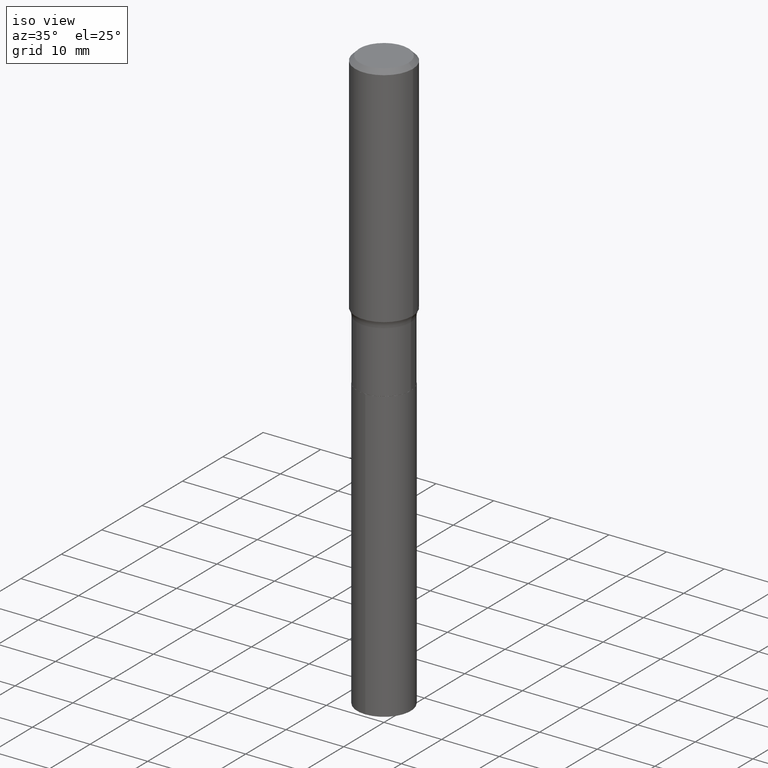
[diagram: clean part render]
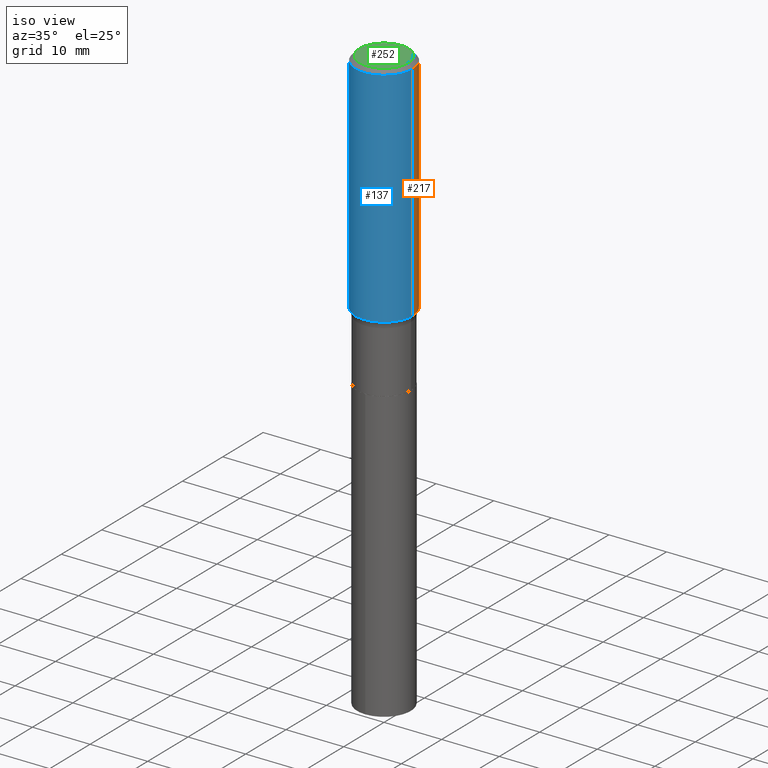
[diagram: same view with three faces highlighted in distinct colors, each labeled with its STEP entity id]
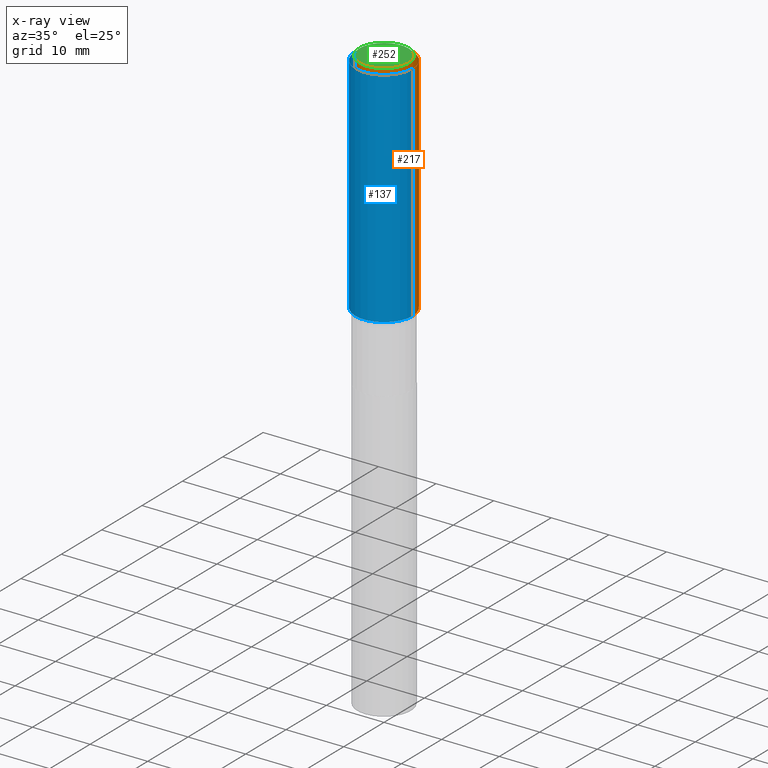
[diagram: x-ray of the same camera — body ghosted, the three highlighted faces saturated]
A machine part, iso view with three faces highlighted in distinct colors.
The next image is the same camera in x-ray (body ghosted, the three faces saturated) — at least one of them is partly hidden behind the body in this view.
Their STEP definitions:

[orange] entity #217 — the highlighted cylindrical surface (edge-blend (fillet) strip) has radius 5 mm, axis along (-0, 0, 1).
#2 = CARTESIAN_POINT ( 'NONE',  ( 7.220858017463216492E-31, -1.030947152326917595E-16, -0.02952750000000022024 ) ) ;
#18 = ORIENTED_EDGE ( 'NONE', *, *, #245, .F. ) ;
#34 = EDGE_CURVE ( 'NONE', #156, #411, #459, .T. ) ;
#43 = DIRECTION ( 'NONE',  ( 1.000000000000000000, -6.982962677686266711E-15, 4.876176775795935793E-29 ) ) ;
#48 = CARTESIAN_POINT ( 'NONE',  ( -0.1968500000000000527, -1.366251266267466202E-15, -0.02952750000000022024 ) ) ;
#77 = ORIENTED_EDGE ( 'NONE', *, *, #34, .T. ) ;
#80 = FACE_OUTER_BOUND ( 'NONE', #355, .T. ) ;
#135 = AXIS2_PLACEMENT_3D ( 'NONE', #296, #371, #216 ) ;
#153 = DIRECTION ( 'NONE',  ( 1.000000000000000000, -6.982962677686266711E-15, 0.000000000000000000 ) ) ;
#156 = VERTEX_POINT ( 'NONE', #417 ) ;
#162 = AXIS2_PLACEMENT_3D ( 'NONE', #222, #376, #43 ) ;
#204 = ORIENTED_EDGE ( 'NONE', *, *, #454, .F. ) ;
#209 = DIRECTION ( 'NONE',  ( -2.445468806185136877E-29, 3.491481338843145188E-15, 1.000000000000000000 ) ) ;
#210 = VERTEX_POINT ( 'NONE', #413 ) ;
#216 = DIRECTION ( 'NONE',  ( 1.000000000000000000, -6.982962677686266711E-15, 0.000000000000000000 ) ) ;
#217 = ADVANCED_FACE ( 'NONE', ( #80 ), #224, .T. ) ;
#222 = CARTESIAN_POINT ( 'NONE',  ( 0.000000000000000000, 0.000000000000000000, 0.000000000000000000 ) ) ;
#224 = CYLINDRICAL_SURFACE ( 'NONE', #162, 0.1968500000000001082 ) ;
#245 = EDGE_CURVE ( 'NONE', #210, #279, #440, .T. ) ;
#246 = VECTOR ( 'NONE', #209, 39.37007874015748143 ) ;
#247 = CARTESIAN_POINT ( 'NONE',  ( 0.1968500000000001082, -1.374596203102542397E-15, 9.598753983154305062E-30 ) ) ;
#276 = AXIS2_PLACEMENT_3D ( 'NONE', #2, #340, #153 ) ;
#279 = VERTEX_POINT ( 'NONE', #48 ) ;
#296 = CARTESIAN_POINT ( 'NONE',  ( 3.800995753672628738E-29, -5.426814567989757082E-15, -1.554301467292922290 ) ) ;
#322 = LINE ( 'NONE', #402, #381 ) ;
#340 = DIRECTION ( 'NONE',  ( -2.445468806185136597E-29, 3.491481338843145583E-15, 1.000000000000000000 ) ) ;
#355 = EDGE_LOOP ( 'NONE', ( #77, #435, #18, #204 ) ) ;
#371 = DIRECTION ( 'NONE',  ( -2.445468806185136597E-29, 3.491481338843145583E-15, 1.000000000000000000 ) ) ;
#376 = DIRECTION ( 'NONE',  ( -2.445468806185136597E-29, 3.491481338843145583E-15, 1.000000000000000000 ) ) ;
#381 = VECTOR ( 'NONE', #405, 39.37007874015748143 ) ;
#386 = LINE ( 'NONE', #247, #246 ) ;
#402 = CARTESIAN_POINT ( 'NONE',  ( -0.1968500000000001082, 1.398703375343757985E-15, -9.682923725166787881E-30 ) ) ;
#405 = DIRECTION ( 'NONE',  ( -2.445468806185136877E-29, 3.491481338843145188E-15, 1.000000000000000000 ) ) ;
#411 = VERTEX_POINT ( 'NONE', #467 ) ;
#413 = CARTESIAN_POINT ( 'NONE',  ( 0.1968500000000000527, -1.477690918335233688E-15, -0.02952750000000022024 ) ) ;
#417 = CARTESIAN_POINT ( 'NONE',  ( 0.1968500000000001915, -6.801410771092300268E-15, -1.554301467292922290 ) ) ;
#435 = ORIENTED_EDGE ( 'NONE', *, *, #486, .T. ) ;
#440 = CIRCLE ( 'NONE', #276, 0.1968500000000000527 ) ;
#454 = EDGE_CURVE ( 'NONE', #156, #210, #386, .T. ) ;
#459 = CIRCLE ( 'NONE', #135, 0.1968500000000001915 ) ;
#467 = CARTESIAN_POINT ( 'NONE',  ( -0.1968500000000001915, -4.028111192645999295E-15, -1.554301467292922290 ) ) ;
#486 = EDGE_CURVE ( 'NONE', #411, #279, #322, .T. ) ;

[blue] entity #137 — the highlighted cylindrical surface (edge-blend (fillet) strip) has radius 5 mm, axis along (-0, 0, 1).
#39 = CIRCLE ( 'NONE', #359, 0.1968500000000001915 ) ;
#48 = CARTESIAN_POINT ( 'NONE',  ( -0.1968500000000000527, -1.366251266267466202E-15, -0.02952750000000022024 ) ) ;
#60 = ORIENTED_EDGE ( 'NONE', *, *, #107, .T. ) ;
#76 = ORIENTED_EDGE ( 'NONE', *, *, #366, .F. ) ;
#107 = EDGE_CURVE ( 'NONE', #411, #156, #39, .T. ) ;
#137 = ADVANCED_FACE ( 'NONE', ( #488 ), #294, .T. ) ;
#156 = VERTEX_POINT ( 'NONE', #417 ) ;
#158 = DIRECTION ( 'NONE',  ( -2.445468806185136597E-29, 3.491481338843145583E-15, 1.000000000000000000 ) ) ;
#164 = DIRECTION ( 'NONE',  ( -2.445468806185136597E-29, 3.491481338843145583E-15, 1.000000000000000000 ) ) ;
#207 = AXIS2_PLACEMENT_3D ( 'NONE', #446, #158, #419 ) ;
#209 = DIRECTION ( 'NONE',  ( -2.445468806185136877E-29, 3.491481338843145188E-15, 1.000000000000000000 ) ) ;
#210 = VERTEX_POINT ( 'NONE', #413 ) ;
#241 = ORIENTED_EDGE ( 'NONE', *, *, #486, .F. ) ;
#246 = VECTOR ( 'NONE', #209, 39.37007874015748143 ) ;
#247 = CARTESIAN_POINT ( 'NONE',  ( 0.1968500000000001082, -1.374596203102542397E-15, 9.598753983154305062E-30 ) ) ;
#277 = AXIS2_PLACEMENT_3D ( 'NONE', #430, #164, #318 ) ;
#279 = VERTEX_POINT ( 'NONE', #48 ) ;
#294 = CYLINDRICAL_SURFACE ( 'NONE', #207, 0.1968500000000001082 ) ;
#318 = DIRECTION ( 'NONE',  ( 1.000000000000000000, -6.982962677686266711E-15, 0.000000000000000000 ) ) ;
#321 = CARTESIAN_POINT ( 'NONE',  ( 3.800995753672628738E-29, -5.426814567989757082E-15, -1.554301467292922290 ) ) ;
#322 = LINE ( 'NONE', #402, #381 ) ;
#359 = AXIS2_PLACEMENT_3D ( 'NONE', #321, #484, #443 ) ;
#362 = EDGE_LOOP ( 'NONE', ( #241, #60, #468, #76 ) ) ;
#366 = EDGE_CURVE ( 'NONE', #279, #210, #431, .T. ) ;
#381 = VECTOR ( 'NONE', #405, 39.37007874015748143 ) ;
#386 = LINE ( 'NONE', #247, #246 ) ;
#402 = CARTESIAN_POINT ( 'NONE',  ( -0.1968500000000001082, 1.398703375343757985E-15, -9.682923725166787881E-30 ) ) ;
#405 = DIRECTION ( 'NONE',  ( -2.445468806185136877E-29, 3.491481338843145188E-15, 1.000000000000000000 ) ) ;
#411 = VERTEX_POINT ( 'NONE', #467 ) ;
#413 = CARTESIAN_POINT ( 'NONE',  ( 0.1968500000000000527, -1.477690918335233688E-15, -0.02952750000000022024 ) ) ;
#417 = CARTESIAN_POINT ( 'NONE',  ( 0.1968500000000001915, -6.801410771092300268E-15, -1.554301467292922290 ) ) ;
#419 = DIRECTION ( 'NONE',  ( 1.000000000000000000, -6.982962677686266711E-15, 4.876176775795935793E-29 ) ) ;
#430 = CARTESIAN_POINT ( 'NONE',  ( 7.220858017463216492E-31, -1.030947152326917595E-16, -0.02952750000000022024 ) ) ;
#431 = CIRCLE ( 'NONE', #277, 0.1968500000000000527 ) ;
#443 = DIRECTION ( 'NONE',  ( 1.000000000000000000, -6.982962677686266711E-15, 0.000000000000000000 ) ) ;
#446 = CARTESIAN_POINT ( 'NONE',  ( 0.000000000000000000, 0.000000000000000000, 0.000000000000000000 ) ) ;
#454 = EDGE_CURVE ( 'NONE', #156, #210, #386, .T. ) ;
#467 = CARTESIAN_POINT ( 'NONE',  ( -0.1968500000000001915, -4.028111192645999295E-15, -1.554301467292922290 ) ) ;
#468 = ORIENTED_EDGE ( 'NONE', *, *, #454, .T. ) ;
#484 = DIRECTION ( 'NONE',  ( -2.445468806185136597E-29, 3.491481338843145583E-15, 1.000000000000000000 ) ) ;
#486 = EDGE_CURVE ( 'NONE', #411, #279, #322, .T. ) ;
#488 = FACE_OUTER_BOUND ( 'NONE', #362, .T. ) ;

[green] entity #252 — the highlighted planar face has unit normal (0, -0, -1).
#62 = VERTEX_POINT ( 'NONE', #70 ) ;
#70 = CARTESIAN_POINT ( 'NONE',  ( -0.1673224999999999851, 1.219954130253505460E-15, 4.096137381439757534E-18 ) ) ;
#85 = DIRECTION ( 'NONE',  ( -1.000000000000000000, 6.982962677686265922E-15, -4.876176775795935793E-29 ) ) ;
#115 = CARTESIAN_POINT ( 'NONE',  ( -5.008488096090108951E-47, 7.150793614331948590E-33, 2.048068690724054183E-18 ) ) ;
#140 = DIRECTION ( 'NONE',  ( 1.000000000000000000, -6.982962677686267499E-15, 4.876294436782262290E-29 ) ) ;
#163 = AXIS2_PLACEMENT_3D ( 'NONE', #306, #390, #140 ) ;
#167 = CARTESIAN_POINT ( 'NONE',  ( 0.1673224999999999851, -1.300749711163072594E-15, 4.096137381456741925E-18 ) ) ;
#194 = CIRCLE ( 'NONE', #348, 0.1673224999999999851 ) ;
#197 = DIRECTION ( 'NONE',  ( -2.445468806185136597E-29, 3.491481338843145583E-15, 1.000000000000000000 ) ) ;
#220 = EDGE_LOOP ( 'NONE', ( #426, #233 ) ) ;
#225 = FACE_OUTER_BOUND ( 'NONE', #220, .T. ) ;
#233 = ORIENTED_EDGE ( 'NONE', *, *, #410, .T. ) ;
#252 = ADVANCED_FACE ( 'NONE', ( #225 ), #379, .F. ) ;
#260 = DIRECTION ( 'NONE',  ( 2.438088387897960049E-29, -3.491481338843145188E-15, -1.000000000000000000 ) ) ;
#280 = CARTESIAN_POINT ( 'NONE',  ( -1.001697619218021790E-46, 1.430158722866389718E-32, 4.096137381448108366E-18 ) ) ;
#306 = CARTESIAN_POINT ( 'NONE',  ( -1.001697619218021790E-46, 1.430158722866389718E-32, 4.096137381448108366E-18 ) ) ;
#346 = AXIS2_PLACEMENT_3D ( 'NONE', #115, #260, #85 ) ;
#348 = AXIS2_PLACEMENT_3D ( 'NONE', #280, #197, #436 ) ;
#352 = VERTEX_POINT ( 'NONE', #167 ) ;
#379 = PLANE ( 'NONE',  #346 ) ;
#390 = DIRECTION ( 'NONE',  ( -2.445468806185136597E-29, 3.491481338843145583E-15, 1.000000000000000000 ) ) ;
#410 = EDGE_CURVE ( 'NONE', #352, #62, #491, .T. ) ;
#426 = ORIENTED_EDGE ( 'NONE', *, *, #429, .T. ) ;
#429 = EDGE_CURVE ( 'NONE', #62, #352, #194, .T. ) ;
#436 = DIRECTION ( 'NONE',  ( 1.000000000000000000, -6.982962677686267499E-15, 4.876294436782262290E-29 ) ) ;
#491 = CIRCLE ( 'NONE', #163, 0.1673224999999999851 ) ;